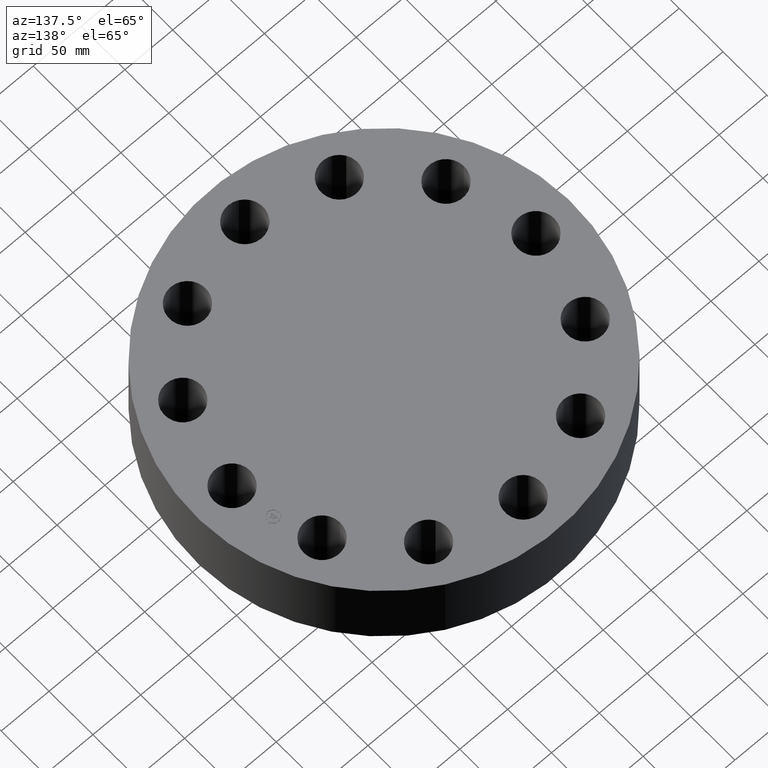
[diagram: clean part render]
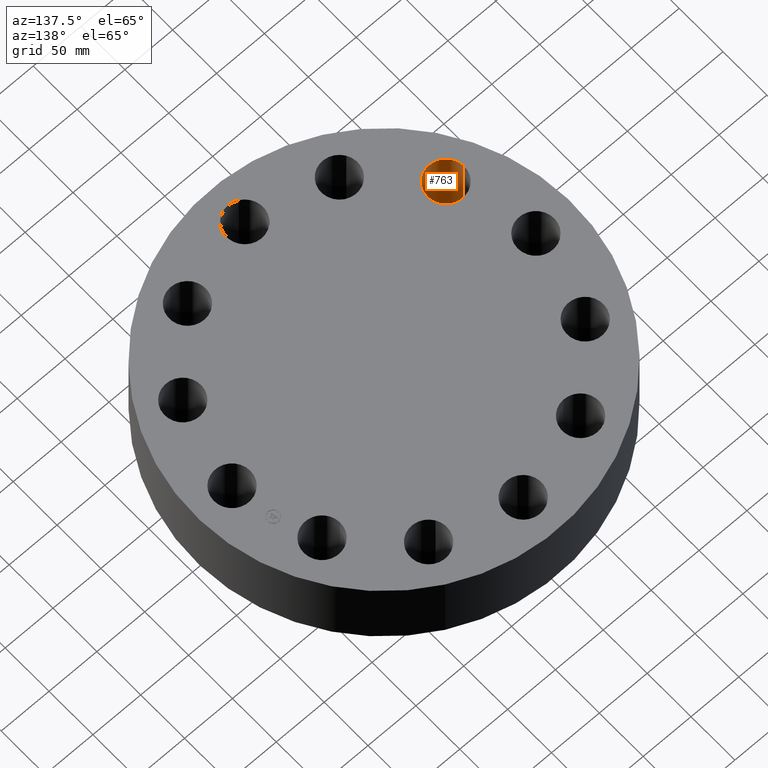
[diagram: same view with one face highlighted and labeled with its STEP entity id]
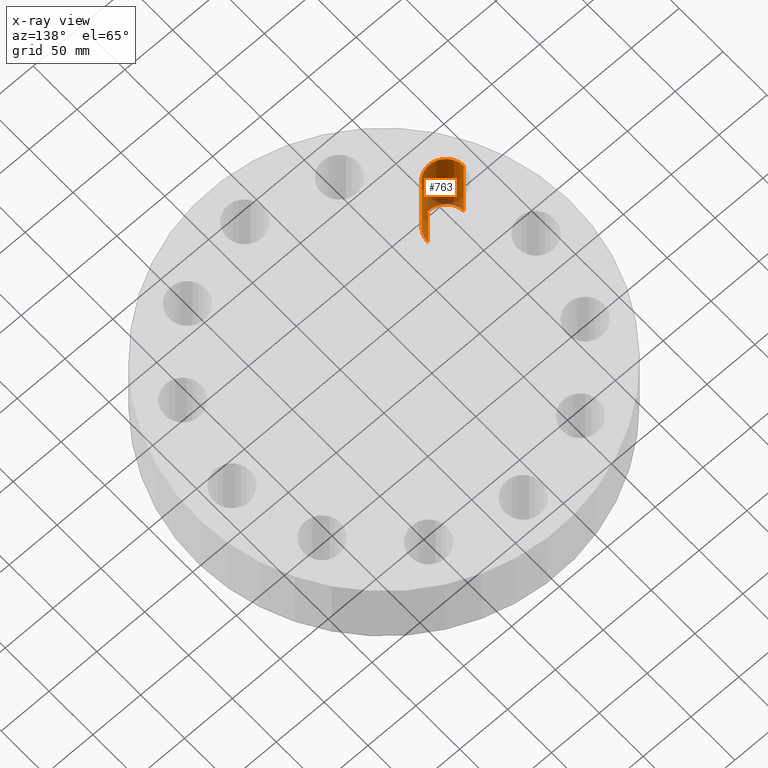
[diagram: x-ray of the same camera — body ghosted, the highlighted face saturated]
A machine part, auxiliary view. The second image highlights one B-rep face of the part: STEP entity #763.
The next image is the same camera in x-ray: the body ghosted, the highlighted face saturated — about 14% of this face is hidden behind the body in this view.
In plain terms, the highlighted cylindrical surface (edge-blend (fillet) strip) has radius 19.05 mm, axis along (-0, 0, -1).
Its self-contained STEP definition (entity closure, byte-faithful):
#307=AXIS2_PLACEMENT_3D('Circle Axis2P3D',#305,#306,$) ;
#736=AXIS2_PLACEMENT_3D('Cylinder Axis2P3D',#733,#734,#735) ;
#754=AXIS2_PLACEMENT_3D('Circle Axis2P3D',#752,#753,$) ;
#305=CARTESIAN_POINT('Axis2P3D Location',(-5.41265877367,-3.12500000001,0.)) ;
#309=CARTESIAN_POINT('Vertex',(-4.66286760231,-3.10730256104,0.)) ;
#311=CARTESIAN_POINT('Vertex',(-6.16244994504,-3.14269743898,0.)) ;
#733=CARTESIAN_POINT('Axis2P3D Location',(-5.41265877367,-3.12500000001,3.24606299214)) ;
#738=CARTESIAN_POINT('Line Origine',(-4.66286760231,-3.10730256104,1.62500000001)) ;
#742=CARTESIAN_POINT('Vertex',(-4.66286760231,-3.10730256104,3.25000000001)) ;
#745=CARTESIAN_POINT('Line Origine',(-6.16244994504,-3.14269743898,1.62500000001)) ;
#749=CARTESIAN_POINT('Vertex',(-6.16244994504,-3.14269743898,3.25000000001)) ;
#752=CARTESIAN_POINT('Axis2P3D Location',(-5.41265877367,-3.12500000001,3.25000000001)) ;
#306=DIRECTION('Axis2P3D Direction',(0.,0.,-0.0393700787402)) ;
#734=DIRECTION('Axis2P3D Direction',(-0.,0.,-0.0393700787402)) ;
#735=DIRECTION('Axis2P3D XDirection',(-0.039359116607,-0.000928999420902,0.)) ;
#739=DIRECTION('Vector Direction',(0.,0.,-0.0393700787402)) ;
#746=DIRECTION('Vector Direction',(0.,0.,-0.0393700787402)) ;
#753=DIRECTION('Axis2P3D Direction',(-0.,0.,-0.0393700787402)) ;
#740=VECTOR('Line Direction',#739,0.0393700787402) ;
#747=VECTOR('Line Direction',#746,0.0393700787402) ;
#758=ORIENTED_EDGE('',*,*,#744,.F.) ;
#759=ORIENTED_EDGE('',*,*,#313,.T.) ;
#760=ORIENTED_EDGE('',*,*,#751,.T.) ;
#761=ORIENTED_EDGE('',*,*,#756,.F.) ;
#763=ADVANCED_FACE('PartBody',(#762),#737,.F.) ;
#308=CIRCLE('generated circle',#307,0.750000000003) ;
#755=CIRCLE('generated circle',#754,0.750000000003) ;
#737=CYLINDRICAL_SURFACE('generated cylinder',#736,0.750000000003) ;
#313=EDGE_CURVE('',#310,#312,#308,.T.) ;
#744=EDGE_CURVE('',#310,#743,#741,.F.) ;
#751=EDGE_CURVE('',#312,#750,#748,.F.) ;
#756=EDGE_CURVE('',#743,#750,#755,.T.) ;
#757=EDGE_LOOP('',(#758,#759,#760,#761)) ;
#762=FACE_OUTER_BOUND('',#757,.T.) ;
#741=LINE('Line',#738,#740) ;
#748=LINE('Line',#745,#747) ;
#310=VERTEX_POINT('',#309) ;
#312=VERTEX_POINT('',#311) ;
#743=VERTEX_POINT('',#742) ;
#750=VERTEX_POINT('',#749) ;